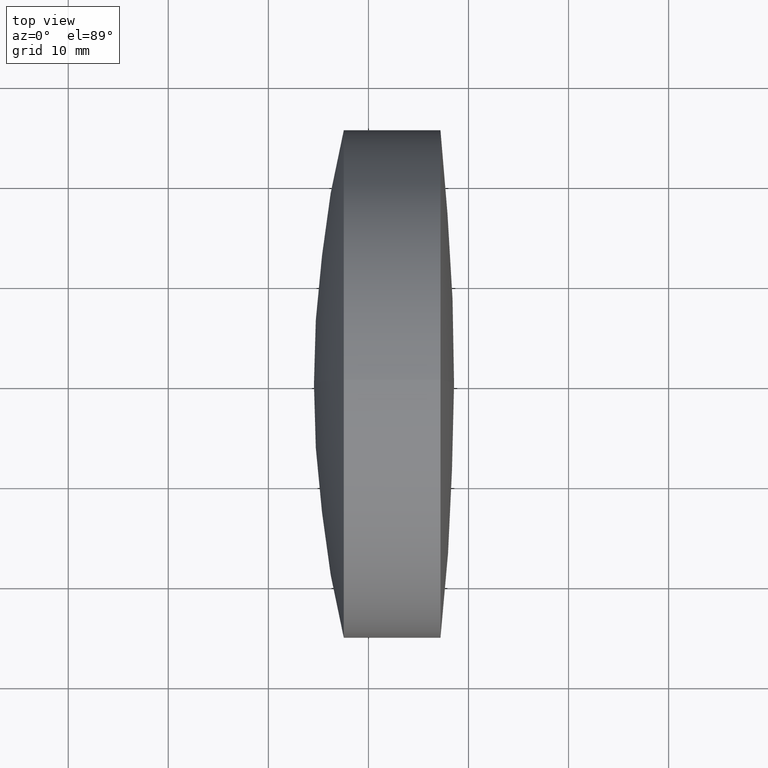
[diagram: clean part render]
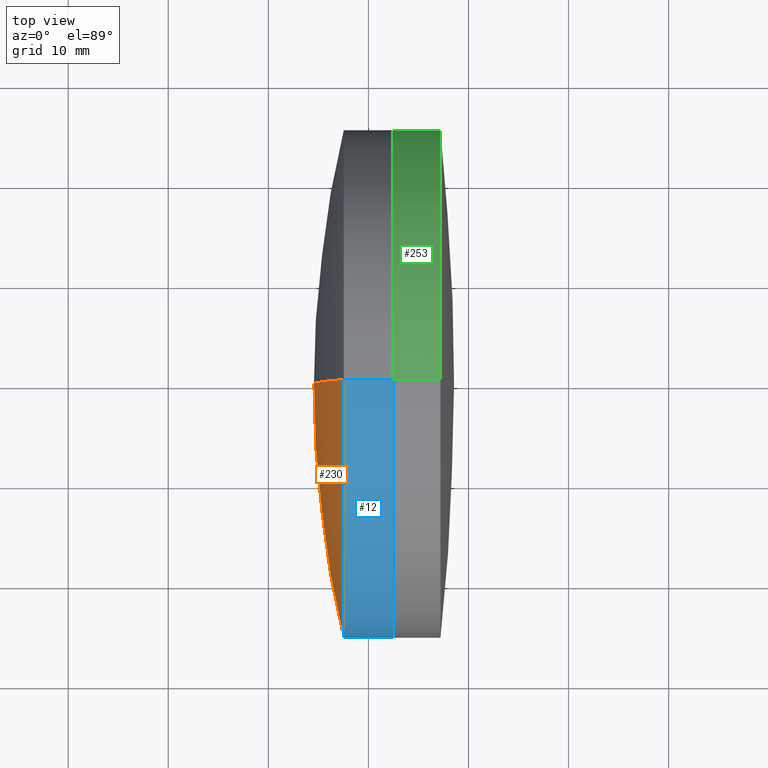
[diagram: same view with three faces highlighted in distinct colors, each labeled with its STEP entity id]
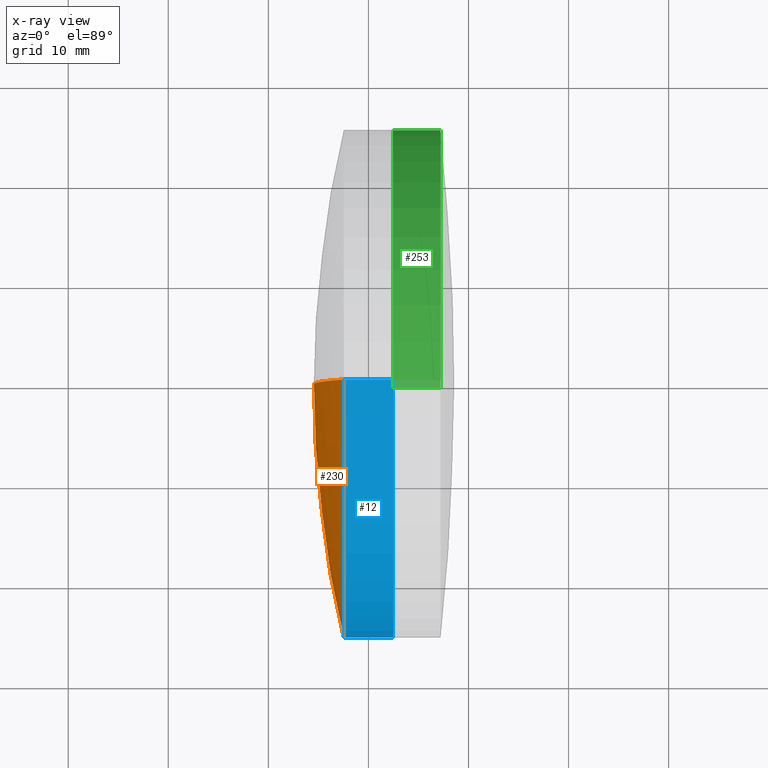
[diagram: x-ray of the same camera — body ghosted, the three highlighted faces saturated]
A machine part, top view with three faces highlighted in distinct colors.
The next image is the same camera in x-ray (body ghosted, the three faces saturated) — at least one of them is partly hidden behind the body in this view.
Their STEP definitions:

[orange] entity #230 — the highlighted spherical surface has radius 109.7 mm.
#43 = DIRECTION ( 'NONE',  ( 0.0000000000000000000, -1.000000000000000000, 0.0000000000000000000 ) ) ;
#61 = CIRCLE ( 'NONE', #168, 109.7000000000000300 ) ;
#68 = CARTESIAN_POINT ( 'NONE',  ( 337.5385320495342400, 3.110602869834276900E-015, -25.40000000000000600 ) ) ;
#69 = DIRECTION ( 'NONE',  ( 0.0000000000000000000, 0.0000000000000000000, -1.000000000000000000 ) ) ;
#79 = ORIENTED_EDGE ( 'NONE', *, *, #298, .T. ) ;
#89 = AXIS2_PLACEMENT_3D ( 'NONE', #292, #43, #69 ) ;
#93 = EDGE_LOOP ( 'NONE', ( #255, #79, #118 ) ) ;
#107 = DIRECTION ( 'NONE',  ( 0.0000000000000000000, -1.224646799147353200E-016, 1.000000000000000000 ) ) ;
#116 = SPHERICAL_SURFACE ( 'NONE', #289, 109.7000000000000300 ) ;
#118 = ORIENTED_EDGE ( 'NONE', *, *, #279, .T. ) ;
#122 = DIRECTION ( 'NONE',  ( 0.0000000000000000000, 1.000000000000000000, 0.0000000000000000000 ) ) ;
#146 = VERTEX_POINT ( 'NONE', #155 ) ;
#155 = CARTESIAN_POINT ( 'NONE',  ( 334.5574619542142000, 0.0000000000000000000, 3.451904973311803600E-015 ) ) ;
#168 = AXIS2_PLACEMENT_3D ( 'NONE', #327, #329, #107 ) ;
#169 = CIRCLE ( 'NONE', #89, 109.7000000000000300 ) ;
#188 = CARTESIAN_POINT ( 'NONE',  ( 337.5385320495342400, 0.0000000000000000000, 25.39999999999999900 ) ) ;
#230 = ADVANCED_FACE ( 'NONE', ( #233 ), #116, .T. ) ;
#233 = FACE_OUTER_BOUND ( 'NONE', #93, .T. ) ;
#255 = ORIENTED_EDGE ( 'NONE', *, *, #315, .F. ) ;
#268 = DIRECTION ( 'NONE',  ( 0.0000000000000000000, 0.0000000000000000000, 1.000000000000000000 ) ) ;
#279 = EDGE_CURVE ( 'NONE', #331, #146, #169, .T. ) ;
#289 = AXIS2_PLACEMENT_3D ( 'NONE', #312, #122, #317 ) ;
#292 = CARTESIAN_POINT ( 'NONE',  ( 444.2574619542142500, 0.0000000000000000000, -3.265282720011431000E-015 ) ) ;
#293 = CIRCLE ( 'NONE', #310, 25.39999999999999500 ) ;
#298 = EDGE_CURVE ( 'NONE', #321, #331, #293, .T. ) ;
#310 = AXIS2_PLACEMENT_3D ( 'NONE', #322, #319, #268 ) ;
#312 = CARTESIAN_POINT ( 'NONE',  ( 444.2574619542142500, 0.0000000000000000000, -3.265282720011431000E-015 ) ) ;
#315 = EDGE_CURVE ( 'NONE', #321, #146, #61, .T. ) ;
#317 = DIRECTION ( 'NONE',  ( 0.0000000000000000000, 0.0000000000000000000, 1.000000000000000000 ) ) ;
#319 = DIRECTION ( 'NONE',  ( -1.000000000000000000, -0.0000000000000000000, -0.0000000000000000000 ) ) ;
#321 = VERTEX_POINT ( 'NONE', #68 ) ;
#322 = CARTESIAN_POINT ( 'NONE',  ( 337.5385320495342400, 0.0000000000000000000, 0.0000000000000000000 ) ) ;
#327 = CARTESIAN_POINT ( 'NONE',  ( 444.2574619542142500, 0.0000000000000000000, -3.265282720011431000E-015 ) ) ;
#329 = DIRECTION ( 'NONE',  ( -0.0000000000000000000, 1.000000000000000000, 1.224646799147353200E-016 ) ) ;
#331 = VERTEX_POINT ( 'NONE', #188 ) ;

[blue] entity #12 — the highlighted cylindrical surface (partial cylindrical patch) has radius 25.4 mm, axis along (-1, -0, -0).
#5 = EDGE_LOOP ( 'NONE', ( #232, #291, #267, #167 ) ) ;
#12 = ADVANCED_FACE ( 'NONE', ( #281 ), #338, .T. ) ;
#26 = AXIS2_PLACEMENT_3D ( 'NONE', #111, #84, #236 ) ;
#60 = CARTESIAN_POINT ( 'NONE',  ( 342.4559606340186500, 0.0000000000000000000, 25.39999999999999500 ) ) ;
#68 = CARTESIAN_POINT ( 'NONE',  ( 337.5385320495342400, 3.110602869834276900E-015, -25.40000000000000600 ) ) ;
#84 = DIRECTION ( 'NONE',  ( -1.000000000000000000, -0.0000000000000000000, -0.0000000000000000000 ) ) ;
#85 = DIRECTION ( 'NONE',  ( -1.000000000000000000, -0.0000000000000000000, -0.0000000000000000000 ) ) ;
#90 = DIRECTION ( 'NONE',  ( 0.0000000000000000000, 0.0000000000000000000, 1.000000000000000000 ) ) ;
#108 = EDGE_CURVE ( 'NONE', #251, #321, #186, .T. ) ;
#111 = CARTESIAN_POINT ( 'NONE',  ( 124.5233095260452400, 0.0000000000000000000, 0.0000000000000000000 ) ) ;
#117 = EDGE_CURVE ( 'NONE', #156, #331, #228, .T. ) ;
#119 = CARTESIAN_POINT ( 'NONE',  ( 124.5233095260452400, 3.110602869834276500E-015, -25.39999999999999500 ) ) ;
#147 = VECTOR ( 'NONE', #85, 1000.000000000000000 ) ;
#152 = VECTOR ( 'NONE', #239, 1000.000000000000000 ) ;
#154 = CARTESIAN_POINT ( 'NONE',  ( 342.4559606340186500, 3.110602869834276500E-015, -25.39999999999999500 ) ) ;
#156 = VERTEX_POINT ( 'NONE', #60 ) ;
#167 = ORIENTED_EDGE ( 'NONE', *, *, #298, .F. ) ;
#179 = CARTESIAN_POINT ( 'NONE',  ( 342.4559606340186500, 0.0000000000000000000, 0.0000000000000000000 ) ) ;
#186 = LINE ( 'NONE', #119, #147 ) ;
#188 = CARTESIAN_POINT ( 'NONE',  ( 337.5385320495342400, 0.0000000000000000000, 25.39999999999999900 ) ) ;
#199 = EDGE_CURVE ( 'NONE', #251, #156, #300, .T. ) ;
#218 = AXIS2_PLACEMENT_3D ( 'NONE', #179, #262, #90 ) ;
#228 = LINE ( 'NONE', #288, #152 ) ;
#232 = ORIENTED_EDGE ( 'NONE', *, *, #108, .F. ) ;
#236 = DIRECTION ( 'NONE',  ( 0.0000000000000000000, 0.0000000000000000000, 1.000000000000000000 ) ) ;
#239 = DIRECTION ( 'NONE',  ( -1.000000000000000000, -0.0000000000000000000, -0.0000000000000000000 ) ) ;
#251 = VERTEX_POINT ( 'NONE', #154 ) ;
#262 = DIRECTION ( 'NONE',  ( -1.000000000000000000, -0.0000000000000000000, -0.0000000000000000000 ) ) ;
#267 = ORIENTED_EDGE ( 'NONE', *, *, #117, .T. ) ;
#268 = DIRECTION ( 'NONE',  ( 0.0000000000000000000, 0.0000000000000000000, 1.000000000000000000 ) ) ;
#281 = FACE_OUTER_BOUND ( 'NONE', #5, .T. ) ;
#288 = CARTESIAN_POINT ( 'NONE',  ( 124.5233095260452400, 0.0000000000000000000, 25.39999999999999500 ) ) ;
#291 = ORIENTED_EDGE ( 'NONE', *, *, #199, .T. ) ;
#293 = CIRCLE ( 'NONE', #310, 25.39999999999999500 ) ;
#298 = EDGE_CURVE ( 'NONE', #321, #331, #293, .T. ) ;
#300 = CIRCLE ( 'NONE', #218, 25.39999999999999500 ) ;
#310 = AXIS2_PLACEMENT_3D ( 'NONE', #322, #319, #268 ) ;
#319 = DIRECTION ( 'NONE',  ( -1.000000000000000000, -0.0000000000000000000, -0.0000000000000000000 ) ) ;
#321 = VERTEX_POINT ( 'NONE', #68 ) ;
#322 = CARTESIAN_POINT ( 'NONE',  ( 337.5385320495342400, 0.0000000000000000000, 0.0000000000000000000 ) ) ;
#331 = VERTEX_POINT ( 'NONE', #188 ) ;
#338 = CYLINDRICAL_SURFACE ( 'NONE', #26, 25.39999999999999500 ) ;

[green] entity #253 — the highlighted cylindrical surface (partial cylindrical patch) has radius 25.4 mm, axis along (-1, -0, -0).
#2 = EDGE_CURVE ( 'NONE', #138, #72, #207, .T. ) ;
#38 = ORIENTED_EDGE ( 'NONE', *, *, #215, .T. ) ;
#50 = CIRCLE ( 'NONE', #180, 25.39999999999994900 ) ;
#51 = DIRECTION ( 'NONE',  ( -1.000000000000000000, -0.0000000000000000000, -0.0000000000000000000 ) ) ;
#62 = ORIENTED_EDGE ( 'NONE', *, *, #2, .F. ) ;
#65 = EDGE_LOOP ( 'NONE', ( #38, #151, #62, #219 ) ) ;
#72 = VERTEX_POINT ( 'NONE', #132 ) ;
#82 = VECTOR ( 'NONE', #150, 1000.000000000000000 ) ;
#86 = VECTOR ( 'NONE', #51, 1000.000000000000000 ) ;
#88 = CYLINDRICAL_SURFACE ( 'NONE', #203, 25.39999999999998800 ) ;
#91 = CARTESIAN_POINT ( 'NONE',  ( 347.2010682353029000, 0.0000000000000000000, 25.39999999999994900 ) ) ;
#92 = DIRECTION ( 'NONE',  ( 0.0000000000000000000, 0.0000000000000000000, 1.000000000000000000 ) ) ;
#96 = DIRECTION ( 'NONE',  ( -1.000000000000000000, -0.0000000000000000000, -0.0000000000000000000 ) ) ;
#104 = AXIS2_PLACEMENT_3D ( 'NONE', #166, #234, #172 ) ;
#123 = CARTESIAN_POINT ( 'NONE',  ( 347.2010682353029000, 3.110602869834273700E-015, -25.39999999999994900 ) ) ;
#125 = FACE_OUTER_BOUND ( 'NONE', #65, .T. ) ;
#131 = LINE ( 'NONE', #258, #82 ) ;
#132 = CARTESIAN_POINT ( 'NONE',  ( 342.4559606340186500, 3.110602869834278400E-015, -25.40000000000000900 ) ) ;
#138 = VERTEX_POINT ( 'NONE', #309 ) ;
#141 = LINE ( 'NONE', #302, #86 ) ;
#150 = DIRECTION ( 'NONE',  ( -1.000000000000000000, -0.0000000000000000000, -0.0000000000000000000 ) ) ;
#151 = ORIENTED_EDGE ( 'NONE', *, *, #343, .T. ) ;
#163 = EDGE_CURVE ( 'NONE', #242, #138, #131, .T. ) ;
#166 = CARTESIAN_POINT ( 'NONE',  ( 342.4559606340186500, 0.0000000000000000000, 0.0000000000000000000 ) ) ;
#172 = DIRECTION ( 'NONE',  ( 0.0000000000000000000, 0.0000000000000000000, 1.000000000000000000 ) ) ;
#180 = AXIS2_PLACEMENT_3D ( 'NONE', #340, #211, #92 ) ;
#203 = AXIS2_PLACEMENT_3D ( 'NONE', #320, #96, #346 ) ;
#207 = CIRCLE ( 'NONE', #104, 25.40000000000002700 ) ;
#211 = DIRECTION ( 'NONE',  ( -1.000000000000000000, -0.0000000000000000000, -0.0000000000000000000 ) ) ;
#215 = EDGE_CURVE ( 'NONE', #242, #224, #50, .T. ) ;
#219 = ORIENTED_EDGE ( 'NONE', *, *, #163, .F. ) ;
#224 = VERTEX_POINT ( 'NONE', #123 ) ;
#234 = DIRECTION ( 'NONE',  ( -1.000000000000000000, -0.0000000000000000000, -0.0000000000000000000 ) ) ;
#242 = VERTEX_POINT ( 'NONE', #91 ) ;
#253 = ADVANCED_FACE ( 'NONE', ( #125 ), #88, .T. ) ;
#258 = CARTESIAN_POINT ( 'NONE',  ( -0.5519199926577972300, 0.0000000000000000000, 25.39999999999998800 ) ) ;
#302 = CARTESIAN_POINT ( 'NONE',  ( -0.5519199926577972300, 3.110602869834276100E-015, -25.39999999999998800 ) ) ;
#309 = CARTESIAN_POINT ( 'NONE',  ( 342.4559606340186500, 0.0000000000000000000, 25.40000000000000900 ) ) ;
#320 = CARTESIAN_POINT ( 'NONE',  ( -0.5519199926577972300, 0.0000000000000000000, 0.0000000000000000000 ) ) ;
#340 = CARTESIAN_POINT ( 'NONE',  ( 347.2010682353029000, 0.0000000000000000000, 0.0000000000000000000 ) ) ;
#343 = EDGE_CURVE ( 'NONE', #224, #72, #141, .T. ) ;
#346 = DIRECTION ( 'NONE',  ( 0.0000000000000000000, 0.0000000000000000000, 1.000000000000000000 ) ) ;